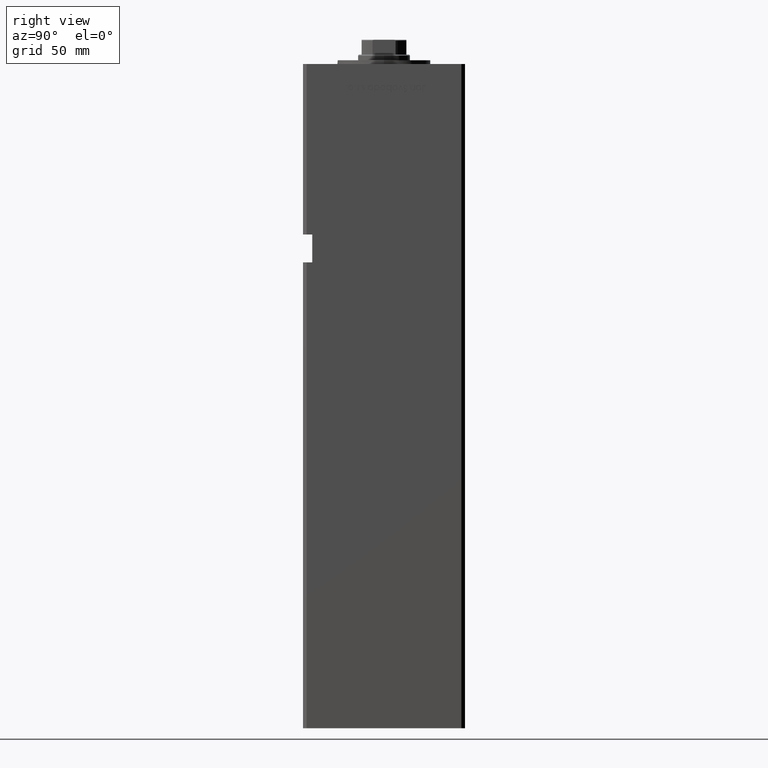
[diagram: clean part render]
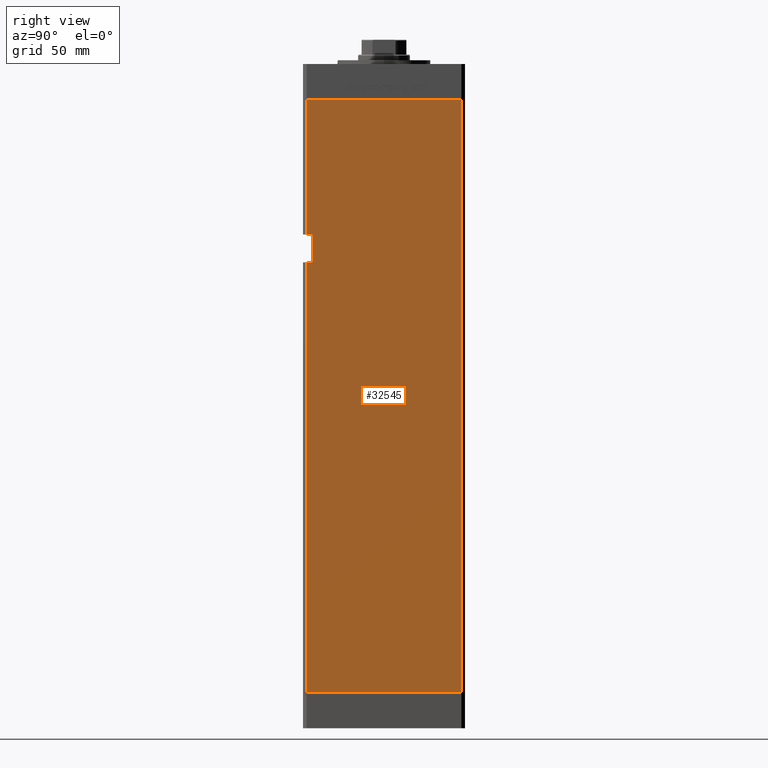
[diagram: same view with one face highlighted and labeled with its STEP entity id]
A machine part, right view. The second image highlights one B-rep face of the part: STEP entity #32545.
In plain terms, the highlighted planar face has unit normal (1, -0, 0).
Its self-contained STEP definition (entity closure, byte-faithful):
#210 = DIRECTION ( 'NONE',  ( -0.000000000000000000, -0.000000000000000000, -1.000000000000000000 ) ) ;
#1468 = VERTEX_POINT ( 'NONE', #22655 ) ;
#2444 = DIRECTION ( 'NONE',  ( -0.000000000000000000, -0.000000000000000000, -1.000000000000000000 ) ) ;
#4064 = LINE ( 'NONE', #16692, #46534 ) ;
#4680 = DIRECTION ( 'NONE',  ( 1.000000000000000000, -3.344045254895050480E-16, 0.000000000000000000 ) ) ;
#4962 = EDGE_CURVE ( 'NONE', #23243, #44131, #4064, .T. ) ;
#5103 = DIRECTION ( 'NONE',  ( -0.000000000000000000, -1.000000000000000000, -0.000000000000000000 ) ) ;
#5459 = CARTESIAN_POINT ( 'NONE',  ( 49.99999999999998579, -38.49999999999999289, 230.9999999999999716 ) ) ;
#5478 = CARTESIAN_POINT ( 'NONE',  ( 50.00000000000001421, 41.49999999999999289, 318.5000000000000000 ) ) ;
#6633 = CARTESIAN_POINT ( 'NONE',  ( 49.99999999999998579, -38.50000000000000000, 246.0000000000000000 ) ) ;
#9765 = AXIS2_PLACEMENT_3D ( 'NONE', #5478, #4680, #21855 ) ;
#10043 = PLANE ( 'NONE',  #9765 ) ;
#10059 = CARTESIAN_POINT ( 'NONE',  ( 50.00000000000001421, 41.49999999999999289, 318.5000000000000000 ) ) ;
#10175 = EDGE_CURVE ( 'NONE', #23399, #40514, #27587, .T. ) ;
#10332 = VECTOR ( 'NONE', #50882, 1000.000000000000000 ) ;
#12894 = ORIENTED_EDGE ( 'NONE', *, *, #10175, .F. ) ;
#12931 = VECTOR ( 'NONE', #210, 1000.000000000000000 ) ;
#13437 = LINE ( 'NONE', #33311, #30257 ) ;
#13547 = ORIENTED_EDGE ( 'NONE', *, *, #29077, .T. ) ;
#15490 = CARTESIAN_POINT ( 'NONE',  ( 50.00000000000001421, 41.49999999999999289, 0.000000000000000000 ) ) ;
#16232 = ORIENTED_EDGE ( 'NONE', *, *, #23871, .T. ) ;
#16320 = CARTESIAN_POINT ( 'NONE',  ( 49.99999999999998579, -41.49999999999999289, 318.5000000000000000 ) ) ;
#16692 = CARTESIAN_POINT ( 'NONE',  ( 49.99999999999998579, -38.50000000000000000, 246.0000000000000000 ) ) ;
#17531 = CARTESIAN_POINT ( 'NONE',  ( 49.99999999999998579, -38.50000000000000000, 246.0000000000000000 ) ) ;
#17558 = VECTOR ( 'NONE', #26978, 1000.000000000000000 ) ;
#18098 = ORIENTED_EDGE ( 'NONE', *, *, #4962, .F. ) ;
#20357 = LINE ( 'NONE', #16320, #12931 ) ;
#21502 = VECTOR ( 'NONE', #33927, 1000.000000000000000 ) ;
#21580 = VERTEX_POINT ( 'NONE', #22185 ) ;
#21855 = DIRECTION ( 'NONE',  ( 3.344045254895050480E-16, 1.000000000000000000, 0.000000000000000000 ) ) ;
#22185 = CARTESIAN_POINT ( 'NONE',  ( 49.99999999999998579, -41.49999999999999289, 230.9999999999999716 ) ) ;
#22537 = EDGE_CURVE ( 'NONE', #21580, #40514, #43069, .T. ) ;
#22655 = CARTESIAN_POINT ( 'NONE',  ( 50.00000000000001421, 41.49999999999999289, 318.5000000000000000 ) ) ;
#23056 = VERTEX_POINT ( 'NONE', #24377 ) ;
#23243 = VERTEX_POINT ( 'NONE', #6633 ) ;
#23399 = VERTEX_POINT ( 'NONE', #49841 ) ;
#23796 = CARTESIAN_POINT ( 'NONE',  ( 49.99999999999998579, -41.49999999999999289, 0.000000000000000000 ) ) ;
#23871 = EDGE_CURVE ( 'NONE', #23056, #44131, #20357, .T. ) ;
#24377 = CARTESIAN_POINT ( 'NONE',  ( 49.99999999999998579, -41.49999999999999289, 318.5000000000000000 ) ) ;
#24522 = EDGE_CURVE ( 'NONE', #30569, #23243, #41452, .T. ) ;
#25007 = DIRECTION ( 'NONE',  ( -0.000000000000000000, -1.000000000000000000, -0.000000000000000000 ) ) ;
#25139 = ORIENTED_EDGE ( 'NONE', *, *, #36497, .F. ) ;
#26978 = DIRECTION ( 'NONE',  ( -3.344045254895050973E-16, -1.000000000000000000, 0.000000000000000000 ) ) ;
#27587 = LINE ( 'NONE', #15490, #46959 ) ;
#29077 = EDGE_CURVE ( 'NONE', #30569, #21580, #13437, .T. ) ;
#30029 = EDGE_LOOP ( 'NONE', ( #13547, #47168, #12894, #25139, #43432, #16232, #18098, #36065 ) ) ;
#30257 = VECTOR ( 'NONE', #5103, 1000.000000000000000 ) ;
#30569 = VERTEX_POINT ( 'NONE', #5459 ) ;
#32545 = ADVANCED_FACE ( 'NONE', ( #50891 ), #10043, .T. ) ;
#33311 = CARTESIAN_POINT ( 'NONE',  ( 49.99999999999998579, -38.50000000000000000, 230.9999999999999716 ) ) ;
#33927 = DIRECTION ( 'NONE',  ( -0.000000000000000000, -0.000000000000000000, 1.000000000000000000 ) ) ;
#34470 = CARTESIAN_POINT ( 'NONE',  ( 49.99999999999998579, -41.49999999999999289, 318.5000000000000000 ) ) ;
#36065 = ORIENTED_EDGE ( 'NONE', *, *, #24522, .F. ) ;
#36317 = EDGE_CURVE ( 'NONE', #1468, #23056, #39573, .T. ) ;
#36497 = EDGE_CURVE ( 'NONE', #1468, #23399, #47590, .T. ) ;
#38449 = CARTESIAN_POINT ( 'NONE',  ( 50.00000000000001421, 41.49999999999999289, 318.5000000000000000 ) ) ;
#39146 = DIRECTION ( 'NONE',  ( -3.344045254895050973E-16, -1.000000000000000000, 0.000000000000000000 ) ) ;
#39573 = LINE ( 'NONE', #10059, #17558 ) ;
#40514 = VERTEX_POINT ( 'NONE', #23796 ) ;
#41452 = LINE ( 'NONE', #17531, #21502 ) ;
#43069 = LINE ( 'NONE', #34470, #10332 ) ;
#43432 = ORIENTED_EDGE ( 'NONE', *, *, #36317, .T. ) ;
#44131 = VERTEX_POINT ( 'NONE', #47166 ) ;
#46534 = VECTOR ( 'NONE', #25007, 1000.000000000000000 ) ;
#46959 = VECTOR ( 'NONE', #39146, 1000.000000000000000 ) ;
#47166 = CARTESIAN_POINT ( 'NONE',  ( 49.99999999999998579, -41.49999999999999289, 246.0000000000000000 ) ) ;
#47168 = ORIENTED_EDGE ( 'NONE', *, *, #22537, .T. ) ;
#47590 = LINE ( 'NONE', #38449, #51065 ) ;
#49841 = CARTESIAN_POINT ( 'NONE',  ( 50.00000000000001421, 41.49999999999999289, 0.000000000000000000 ) ) ;
#50882 = DIRECTION ( 'NONE',  ( -0.000000000000000000, -0.000000000000000000, -1.000000000000000000 ) ) ;
#50891 = FACE_OUTER_BOUND ( 'NONE', #30029, .T. ) ;
#51065 = VECTOR ( 'NONE', #2444, 1000.000000000000000 ) ;